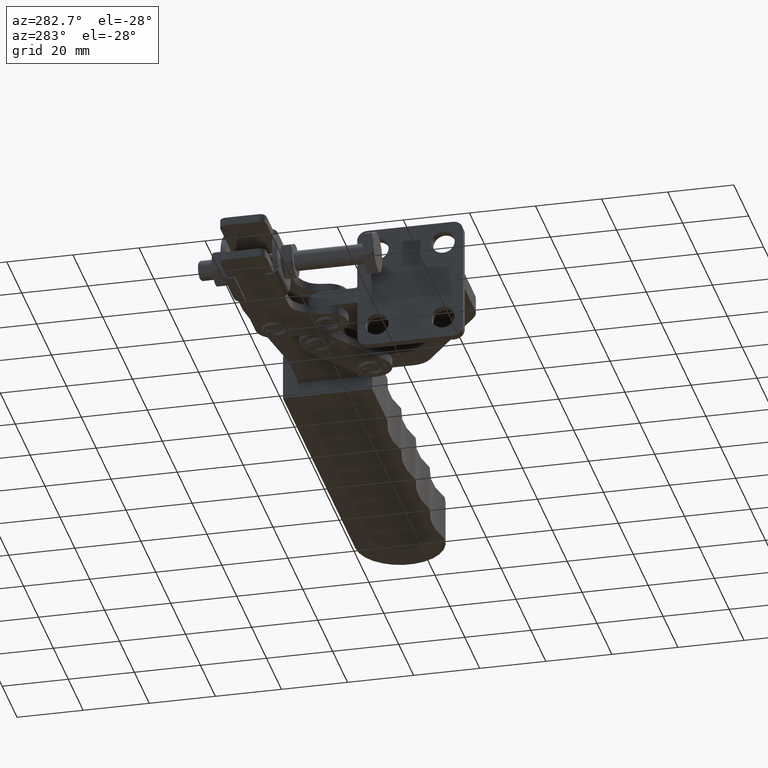
[diagram: clean part render]
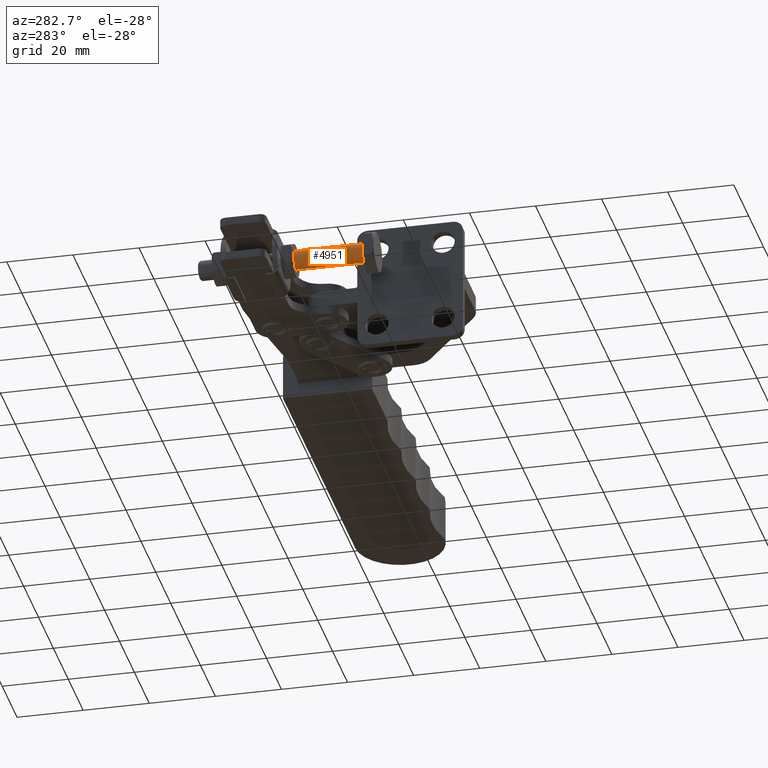
[diagram: same view with one face highlighted and labeled with its STEP entity id]
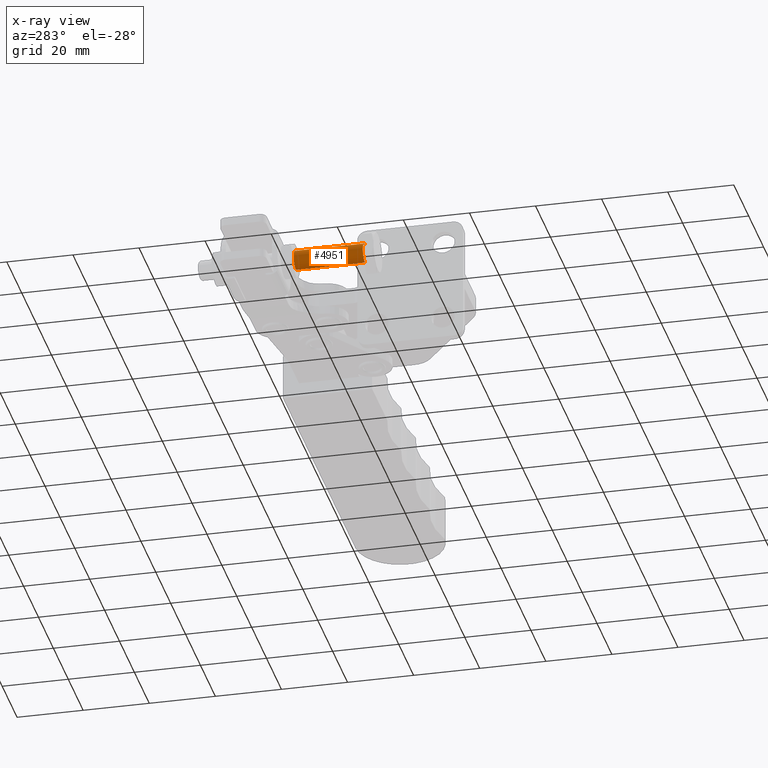
[diagram: x-ray of the same camera — body ghosted, the highlighted face saturated]
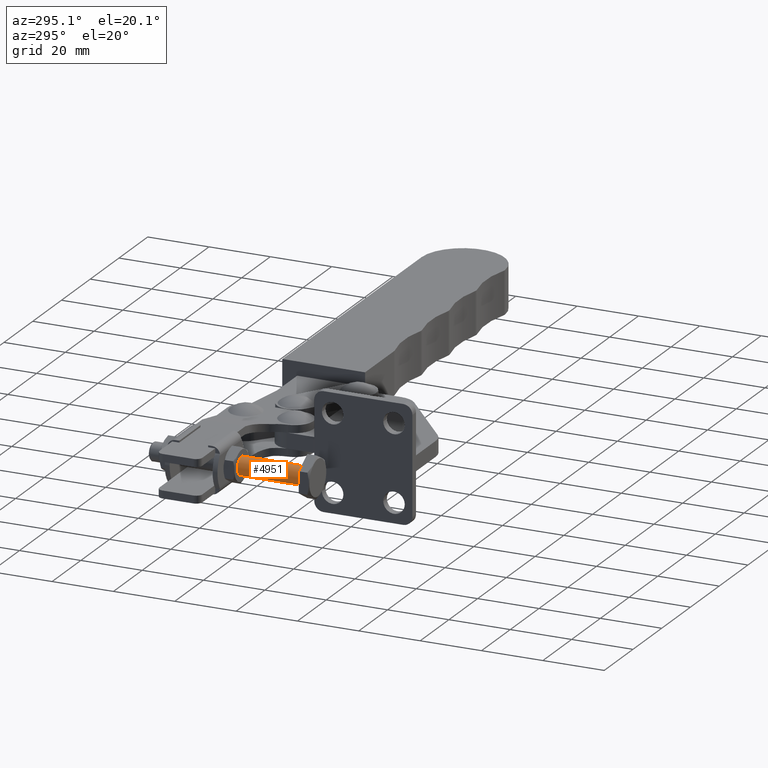
[diagram: same view with one face highlighted and labeled with its STEP entity id]
A machine part, auxiliary view. The second image highlights one B-rep face of the part: STEP entity #4951.
The next image is the same camera in x-ray: the body ghosted, the highlighted face saturated — about 0% of this face is hidden behind the body in this view.
A second angle (auxiliary view) of the same face is appended — the face is thin or edge-on in the first view.
In plain terms, the highlighted cylindrical surface (edge-blend (fillet) strip) has radius 3 mm, axis along (-0, -1, -0).
Its self-contained STEP definition (entity closure, byte-faithful):
#414 = ORIENTED_EDGE ( 'NONE', *, *, #5566, .F. ) ;
#544 = CARTESIAN_POINT ( 'NONE',  ( -21.01607371590338500, 74.90076764092370400, 3.000000000000005300 ) ) ;
#729 = LINE ( 'NONE', #2124, #4818 ) ;
#1298 = CARTESIAN_POINT ( 'NONE',  ( -21.01679392526079900, 45.80076764983614600, -1.608395909919899700E-016 ) ) ;
#1854 = EDGE_CURVE ( 'NONE', #6330, #7693, #729, .T. ) ;
#2124 = CARTESIAN_POINT ( 'NONE',  ( -21.01607371590338500, 74.90076764092370400, -2.999999999999995600 ) ) ;
#2137 = DIRECTION ( 'NONE',  ( -2.474946245419630900E-005, -0.9999999996937321000, -1.540280085607193300E-016 ) ) ;
#2807 = DIRECTION ( 'NONE',  ( 0.9999999996937321000, -2.474946245399160800E-005, 0.0000000000000000000 ) ) ;
#3639 = VECTOR ( 'NONE', #5896, 1000.000000000000000 ) ;
#3662 = DIRECTION ( 'NONE',  ( -2.474946245419007500E-005, -0.9999999996937321000, -1.620878905620099500E-016 ) ) ;
#3664 = LINE ( 'NONE', #544, #3639 ) ;
#3803 = DIRECTION ( 'NONE',  ( -2.474946245419007500E-005, -0.9999999996937321000, -1.620878905620099500E-016 ) ) ;
#4328 = CARTESIAN_POINT ( 'NONE',  ( -21.01607371590338500, 74.90076764092370400, 4.555918024362492000E-015 ) ) ;
#4341 = DIRECTION ( 'NONE',  ( 0.0000000000000000000, 0.0000000000000000000, -1.000000000000000000 ) ) ;
#4454 = DIRECTION ( 'NONE',  ( 2.474946245419007500E-005, 0.9999999996937321000, 1.620878905620099500E-016 ) ) ;
#4791 = AXIS2_PLACEMENT_3D ( 'NONE', #7597, #4454, #4904 ) ;
#4818 = VECTOR ( 'NONE', #3803, 1000.000000000000000 ) ;
#4904 = DIRECTION ( 'NONE',  ( 0.0000000000000000000, 0.0000000000000000000, 1.000000000000000000 ) ) ;
#4950 = EDGE_LOOP ( 'NONE', ( #414, #6970, #7587, #8946 ) ) ;
#4951 = ADVANCED_FACE ( 'NONE', ( #5722 ), #5591, .T. ) ;
#5046 = AXIS2_PLACEMENT_3D ( 'NONE', #1298, #2137, #2807 ) ;
#5566 = EDGE_CURVE ( 'NONE', #8538, #7329, #3664, .T. ) ;
#5591 = CYLINDRICAL_SURFACE ( 'NONE', #9914, 3.000000000000000400 ) ;
#5722 = FACE_OUTER_BOUND ( 'NONE', #4950, .T. ) ;
#5848 = CARTESIAN_POINT ( 'NONE',  ( -21.01731118902609200, 24.90076765623711100, -3.000000000000004000 ) ) ;
#5891 = CIRCLE ( 'NONE', #4791, 3.000000000000000400 ) ;
#5896 = DIRECTION ( 'NONE',  ( -2.474946245419007500E-005, -0.9999999996937321000, -1.620878905620099500E-016 ) ) ;
#6330 = VERTEX_POINT ( 'NONE', #7909 ) ;
#6553 = CARTESIAN_POINT ( 'NONE',  ( -21.01731118902609200, 24.90076765623711100, 2.999999999999996900 ) ) ;
#6970 = ORIENTED_EDGE ( 'NONE', *, *, #8061, .T. ) ;
#7329 = VERTEX_POINT ( 'NONE', #6553 ) ;
#7334 = CARTESIAN_POINT ( 'NONE',  ( -21.01679392526079900, 45.80076764983614600, 3.000000000000000400 ) ) ;
#7587 = ORIENTED_EDGE ( 'NONE', *, *, #1854, .T. ) ;
#7597 = CARTESIAN_POINT ( 'NONE',  ( -21.01731118902609200, 24.90076765623711100, -3.548476503738005800E-015 ) ) ;
#7693 = VERTEX_POINT ( 'NONE', #5848 ) ;
#7909 = CARTESIAN_POINT ( 'NONE',  ( -21.01679392526079900, 45.80076764983614600, -3.000000000000000400 ) ) ;
#8061 = EDGE_CURVE ( 'NONE', #8538, #6330, #9241, .T. ) ;
#8538 = VERTEX_POINT ( 'NONE', #7334 ) ;
#8865 = EDGE_CURVE ( 'NONE', #7693, #7329, #5891, .T. ) ;
#8946 = ORIENTED_EDGE ( 'NONE', *, *, #8865, .T. ) ;
#9241 = CIRCLE ( 'NONE', #5046, 2.999999999999999600 ) ;
#9914 = AXIS2_PLACEMENT_3D ( 'NONE', #4328, #3662, #4341 ) ;